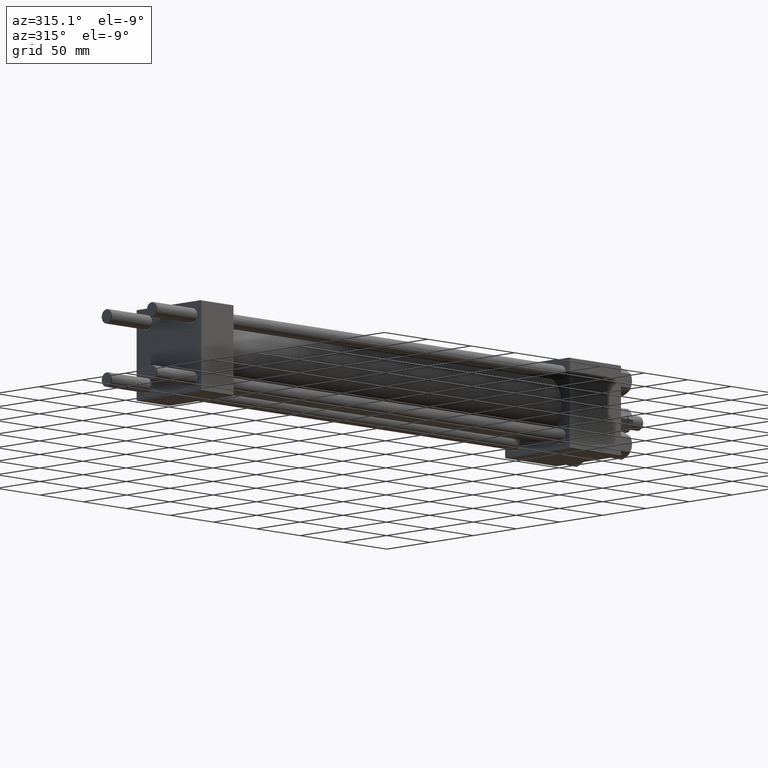
[diagram: clean part render]
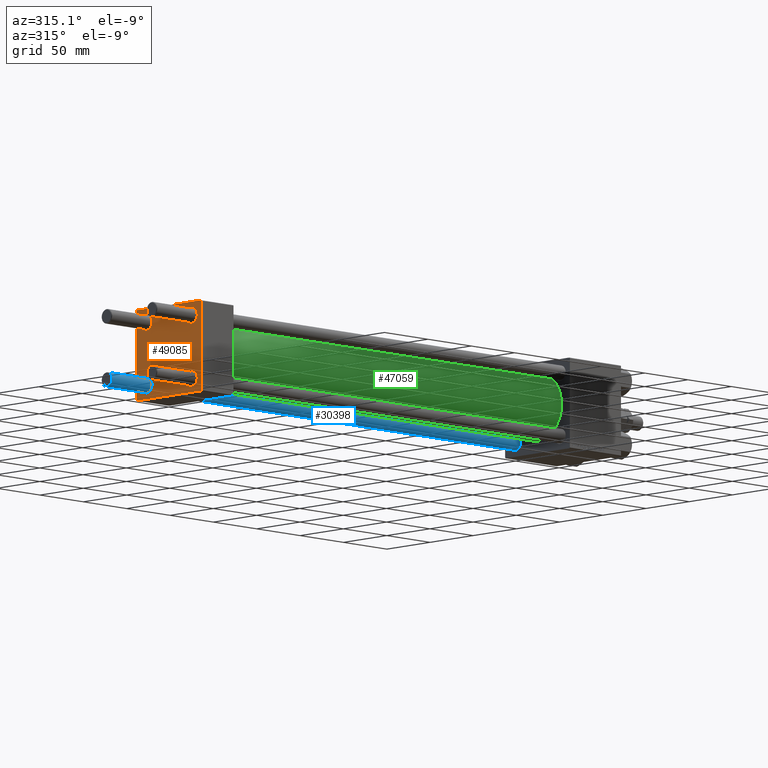
[diagram: same view with three faces highlighted in distinct colors, each labeled with its STEP entity id]
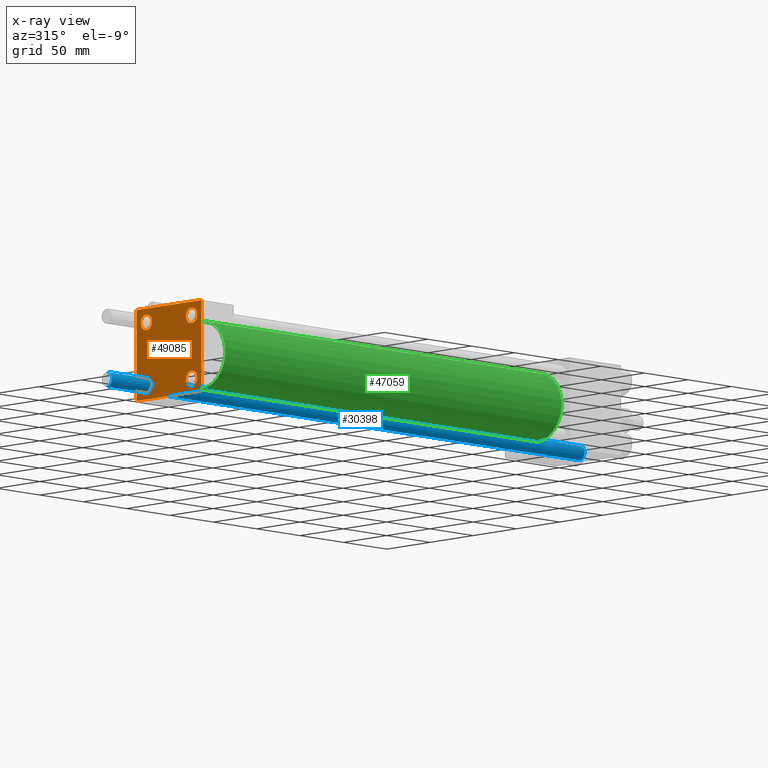
[diagram: x-ray of the same camera — body ghosted, the three highlighted faces saturated]
A machine part, auxiliary view with three faces highlighted in distinct colors.
The next image is the same camera in x-ray (body ghosted, the three faces saturated) — at least one of them is partly hidden behind the body in this view.
Their STEP definitions:

[orange] entity #49085 — the highlighted planar face has unit normal (-1, 0, 0).
#116 = EDGE_CURVE ( 'NONE', #28923, #42458, #24873, .T. ) ;
#856 = ORIENTED_EDGE ( 'NONE', *, *, #39921, .T. ) ;
#881 = VECTOR ( 'NONE', #4417, 1000.000000000000000 ) ;
#1112 = EDGE_CURVE ( 'NONE', #5081, #9514, #28043, .T. ) ;
#1335 = VERTEX_POINT ( 'NONE', #16374 ) ;
#2228 = CARTESIAN_POINT ( 'NONE',  ( 0.000000000000000000, 26.14999999999999858, 26.15000000000000213 ) ) ;
#2292 = ORIENTED_EDGE ( 'NONE', *, *, #17722, .F. ) ;
#2297 = EDGE_LOOP ( 'NONE', ( #21271, #45058, #856, #9551, #2292, #50006, #32623, #17622 ) ) ;
#2407 = CARTESIAN_POINT ( 'NONE',  ( 0.000000000000000000, -37.00000000000002132, -37.50000000000000711 ) ) ;
#2698 = VERTEX_POINT ( 'NONE', #33154 ) ;
#2800 = EDGE_CURVE ( 'NONE', #2698, #32061, #14207, .T. ) ;
#3125 = DIRECTION ( 'NONE',  ( 1.000000000000000000, -0.000000000000000000, 0.000000000000000000 ) ) ;
#3165 = EDGE_LOOP ( 'NONE', ( #31239, #39391 ) ) ;
#3483 = AXIS2_PLACEMENT_3D ( 'NONE', #30097, #3125, #38925 ) ;
#4417 = DIRECTION ( 'NONE',  ( 0.000000000000000000, 0.000000000000000000, -1.000000000000000000 ) ) ;
#5081 = VERTEX_POINT ( 'NONE', #26289 ) ;
#5207 = DIRECTION ( 'NONE',  ( 1.000000000000000000, -0.000000000000000000, 0.000000000000000000 ) ) ;
#5210 = DIRECTION ( 'NONE',  ( -0.000000000000000000, -0.7071067811865474617, -0.7071067811865474617 ) ) ;
#5376 = FACE_BOUND ( 'NONE', #16342, .T. ) ;
#5671 = EDGE_CURVE ( 'NONE', #1335, #51214, #9567, .T. ) ;
#5851 = CARTESIAN_POINT ( 'NONE',  ( 0.000000000000000000, -26.14999999999999147, 32.65000000000003411 ) ) ;
#5861 = DIRECTION ( 'NONE',  ( 1.000000000000000000, -0.000000000000000000, 0.000000000000000000 ) ) ;
#6624 = DIRECTION ( 'NONE',  ( 1.000000000000000000, -0.000000000000000000, 0.000000000000000000 ) ) ;
#7799 = EDGE_CURVE ( 'NONE', #9514, #5081, #24179, .T. ) ;
#9261 = PLANE ( 'NONE',  #36895 ) ;
#9281 = AXIS2_PLACEMENT_3D ( 'NONE', #9903, #17959, #37920 ) ;
#9514 = VERTEX_POINT ( 'NONE', #5851 ) ;
#9551 = ORIENTED_EDGE ( 'NONE', *, *, #116, .T. ) ;
#9567 = LINE ( 'NONE', #25402, #881 ) ;
#9587 = EDGE_CURVE ( 'NONE', #48383, #1335, #21678, .T. ) ;
#9745 = EDGE_CURVE ( 'NONE', #47883, #18665, #31668, .T. ) ;
#9766 = VECTOR ( 'NONE', #20982, 1000.000000000000000 ) ;
#9823 = DIRECTION ( 'NONE',  ( 0.000000000000000000, -1.000000000000000000, -9.251858538542971581E-17 ) ) ;
#9903 = CARTESIAN_POINT ( 'NONE',  ( 0.000000000000000000, 26.14999999999999858, -26.15000000000000213 ) ) ;
#9910 = DIRECTION ( 'NONE',  ( 0.000000000000000000, 0.000000000000000000, 1.000000000000000000 ) ) ;
#10047 = CARTESIAN_POINT ( 'NONE',  ( 0.000000000000000000, -37.00000000000000711, 37.49999999999999289 ) ) ;
#10551 = ORIENTED_EDGE ( 'NONE', *, *, #1112, .T. ) ;
#10692 = CARTESIAN_POINT ( 'NONE',  ( 0.000000000000000000, -26.14999999999999147, 26.15000000000000924 ) ) ;
#12324 = EDGE_CURVE ( 'NONE', #24722, #38410, #29971, .T. ) ;
#12497 = CIRCLE ( 'NONE', #14984, 6.500000000000015987 ) ;
#13223 = VECTOR ( 'NONE', #42477, 1000.000000000000114 ) ;
#13253 = DIRECTION ( 'NONE',  ( 0.000000000000000000, -1.000000000000000000, -9.251858538542972814E-17 ) ) ;
#13558 = CARTESIAN_POINT ( 'NONE',  ( 0.000000000000000000, -37.50000000000000000, -37.00000000000003553 ) ) ;
#13928 = CARTESIAN_POINT ( 'NONE',  ( 0.000000000000000000, 36.99999999999999289, 37.50000000000000000 ) ) ;
#14207 = LINE ( 'NONE', #49481, #13223 ) ;
#14787 = AXIS2_PLACEMENT_3D ( 'NONE', #36232, #27224, #35016 ) ;
#14984 = AXIS2_PLACEMENT_3D ( 'NONE', #23787, #43760, #42987 ) ;
#15063 = EDGE_CURVE ( 'NONE', #51214, #38805, #37116, .T. ) ;
#15704 = VECTOR ( 'NONE', #27968, 1000.000000000000000 ) ;
#16342 = EDGE_LOOP ( 'NONE', ( #34726, #22605 ) ) ;
#16374 = CARTESIAN_POINT ( 'NONE',  ( 0.000000000000000000, 37.49999999999999289, 37.00000000000000000 ) ) ;
#16810 = FACE_BOUND ( 'NONE', #43798, .T. ) ;
#17578 = VERTEX_POINT ( 'NONE', #42771 ) ;
#17622 = ORIENTED_EDGE ( 'NONE', *, *, #9587, .T. ) ;
#17655 = VECTOR ( 'NONE', #5210, 1000.000000000000114 ) ;
#17722 = EDGE_CURVE ( 'NONE', #2698, #42458, #24074, .T. ) ;
#17959 = DIRECTION ( 'NONE',  ( 1.000000000000000000, -0.000000000000000000, 0.000000000000000000 ) ) ;
#18191 = CIRCLE ( 'NONE', #26488, 6.500000000000023093 ) ;
#18665 = VERTEX_POINT ( 'NONE', #23613 ) ;
#19162 = EDGE_CURVE ( 'NONE', #17578, #27385, #32313, .T. ) ;
#19226 = EDGE_CURVE ( 'NONE', #27385, #17578, #18191, .T. ) ;
#20298 = VECTOR ( 'NONE', #13253, 1000.000000000000000 ) ;
#20982 = DIRECTION ( 'NONE',  ( 0.000000000000000000, -0.7071067811865524577, 0.7071067811865426878 ) ) ;
#21084 = CARTESIAN_POINT ( 'NONE',  ( 0.000000000000000000, 36.99999999999997868, -37.50000000000000000 ) ) ;
#21271 = ORIENTED_EDGE ( 'NONE', *, *, #5671, .T. ) ;
#21332 = EDGE_LOOP ( 'NONE', ( #36058, #10551 ) ) ;
#21451 = DIRECTION ( 'NONE',  ( -0.000000000000000000, 0.000000000000000000, 1.000000000000000000 ) ) ;
#21678 = LINE ( 'NONE', #29210, #32472 ) ;
#22605 = ORIENTED_EDGE ( 'NONE', *, *, #9745, .T. ) ;
#23228 = DIRECTION ( 'NONE',  ( 0.000000000000000000, 0.000000000000000000, 1.000000000000000000 ) ) ;
#23518 = ORIENTED_EDGE ( 'NONE', *, *, #19226, .T. ) ;
#23613 = CARTESIAN_POINT ( 'NONE',  ( 0.000000000000000000, 26.14999999999999858, -19.64999999999998792 ) ) ;
#23787 = CARTESIAN_POINT ( 'NONE',  ( 0.000000000000000000, 26.14999999999999858, -26.15000000000000213 ) ) ;
#24074 = LINE ( 'NONE', #47424, #15704 ) ;
#24179 = CIRCLE ( 'NONE', #33287, 6.500000000000023093 ) ;
#24722 = VERTEX_POINT ( 'NONE', #39095 ) ;
#24791 = EDGE_CURVE ( 'NONE', #18665, #47883, #12497, .T. ) ;
#24873 = LINE ( 'NONE', #40693, #9766 ) ;
#25090 = CARTESIAN_POINT ( 'NONE',  ( 0.000000000000000000, 0.000000000000000000, 0.000000000000000000 ) ) ;
#25402 = CARTESIAN_POINT ( 'NONE',  ( 0.000000000000000000, 37.49999999999999289, 37.50000000000000000 ) ) ;
#26289 = CARTESIAN_POINT ( 'NONE',  ( 0.000000000000000000, -26.14999999999999147, 19.64999999999999147 ) ) ;
#26345 = CARTESIAN_POINT ( 'NONE',  ( 0.000000000000000000, 26.14999999999999858, 26.15000000000000213 ) ) ;
#26449 = EDGE_CURVE ( 'NONE', #38410, #24722, #42342, .T. ) ;
#26488 = AXIS2_PLACEMENT_3D ( 'NONE', #26345, #6624, #23228 ) ;
#27224 = DIRECTION ( 'NONE',  ( 1.000000000000000000, -0.000000000000000000, 0.000000000000000000 ) ) ;
#27385 = VERTEX_POINT ( 'NONE', #27748 ) ;
#27748 = CARTESIAN_POINT ( 'NONE',  ( 0.000000000000000000, 26.14999999999999858, 19.64999999999998437 ) ) ;
#27968 = DIRECTION ( 'NONE',  ( 0.000000000000000000, 9.251858538542971581E-17, -1.000000000000000000 ) ) ;
#28043 = CIRCLE ( 'NONE', #14787, 6.500000000000023093 ) ;
#28738 = CARTESIAN_POINT ( 'NONE',  ( 0.000000000000000000, 26.14999999999999858, -32.65000000000001990 ) ) ;
#28831 = CARTESIAN_POINT ( 'NONE',  ( 0.000000000000000000, 37.49999999999999289, -36.99999999999998579 ) ) ;
#28923 = VERTEX_POINT ( 'NONE', #2407 ) ;
#29210 = CARTESIAN_POINT ( 'NONE',  ( 0.000000000000000000, 37.24999999999999289, 37.24999999999999289 ) ) ;
#29971 = CIRCLE ( 'NONE', #3483, 6.500000000000015987 ) ;
#30053 = LINE ( 'NONE', #45878, #36189 ) ;
#30097 = CARTESIAN_POINT ( 'NONE',  ( 0.000000000000000000, -26.14999999999999147, -26.15000000000000924 ) ) ;
#31239 = ORIENTED_EDGE ( 'NONE', *, *, #12324, .T. ) ;
#31668 = CIRCLE ( 'NONE', #9281, 6.500000000000015987 ) ;
#32061 = VERTEX_POINT ( 'NONE', #10047 ) ;
#32313 = CIRCLE ( 'NONE', #45553, 6.500000000000023093 ) ;
#32472 = VECTOR ( 'NONE', #42163, 1000.000000000000114 ) ;
#32623 = ORIENTED_EDGE ( 'NONE', *, *, #43207, .F. ) ;
#33154 = CARTESIAN_POINT ( 'NONE',  ( 0.000000000000000000, -37.50000000000000711, 36.99999999999999289 ) ) ;
#33287 = AXIS2_PLACEMENT_3D ( 'NONE', #10692, #46488, #9910 ) ;
#33880 = DIRECTION ( 'NONE',  ( 0.000000000000000000, 0.000000000000000000, 1.000000000000000000 ) ) ;
#34726 = ORIENTED_EDGE ( 'NONE', *, *, #24791, .T. ) ;
#34939 = CARTESIAN_POINT ( 'NONE',  ( 0.000000000000000000, -26.14999999999999147, -32.65000000000002700 ) ) ;
#35016 = DIRECTION ( 'NONE',  ( 0.000000000000000000, 0.000000000000000000, 1.000000000000000000 ) ) ;
#35857 = DIRECTION ( 'NONE',  ( 0.000000000000000000, 0.000000000000000000, 1.000000000000000000 ) ) ;
#36058 = ORIENTED_EDGE ( 'NONE', *, *, #7799, .T. ) ;
#36189 = VECTOR ( 'NONE', #9823, 1000.000000000000000 ) ;
#36232 = CARTESIAN_POINT ( 'NONE',  ( 0.000000000000000000, -26.14999999999999147, 26.15000000000000924 ) ) ;
#36778 = FACE_BOUND ( 'NONE', #21332, .T. ) ;
#36895 = AXIS2_PLACEMENT_3D ( 'NONE', #25090, #37027, #21451 ) ;
#37027 = DIRECTION ( 'NONE',  ( -1.000000000000000000, 0.000000000000000000, -0.000000000000000000 ) ) ;
#37116 = LINE ( 'NONE', #40756, #17655 ) ;
#37920 = DIRECTION ( 'NONE',  ( 0.000000000000000000, 0.000000000000000000, 1.000000000000000000 ) ) ;
#38410 = VERTEX_POINT ( 'NONE', #34939 ) ;
#38805 = VERTEX_POINT ( 'NONE', #21084 ) ;
#38925 = DIRECTION ( 'NONE',  ( 0.000000000000000000, 0.000000000000000000, 1.000000000000000000 ) ) ;
#39095 = CARTESIAN_POINT ( 'NONE',  ( 0.000000000000000000, -26.14999999999999147, -19.64999999999999503 ) ) ;
#39391 = ORIENTED_EDGE ( 'NONE', *, *, #26449, .T. ) ;
#39921 = EDGE_CURVE ( 'NONE', #38805, #28923, #40997, .T. ) ;
#40500 = CARTESIAN_POINT ( 'NONE',  ( 0.000000000000000000, -26.14999999999999147, -26.15000000000000924 ) ) ;
#40693 = CARTESIAN_POINT ( 'NONE',  ( 0.000000000000000000, -37.24999999999975842, -37.25000000000027001 ) ) ;
#40756 = CARTESIAN_POINT ( 'NONE',  ( 0.000000000000000000, 37.24999999999998579, -37.24999999999998579 ) ) ;
#40997 = LINE ( 'NONE', #48527, #20298 ) ;
#41174 = FACE_BOUND ( 'NONE', #3165, .T. ) ;
#41513 = AXIS2_PLACEMENT_3D ( 'NONE', #40500, #5207, #35857 ) ;
#42163 = DIRECTION ( 'NONE',  ( 0.000000000000000000, 0.7071067811865474617, -0.7071067811865474617 ) ) ;
#42342 = CIRCLE ( 'NONE', #41513, 6.500000000000015987 ) ;
#42458 = VERTEX_POINT ( 'NONE', #13558 ) ;
#42477 = DIRECTION ( 'NONE',  ( -0.000000000000000000, 0.7071067811865474617, 0.7071067811865474617 ) ) ;
#42771 = CARTESIAN_POINT ( 'NONE',  ( 0.000000000000000000, 26.14999999999999858, 32.65000000000002700 ) ) ;
#42987 = DIRECTION ( 'NONE',  ( 0.000000000000000000, 0.000000000000000000, 1.000000000000000000 ) ) ;
#43207 = EDGE_CURVE ( 'NONE', #48383, #32061, #30053, .T. ) ;
#43760 = DIRECTION ( 'NONE',  ( 1.000000000000000000, -0.000000000000000000, 0.000000000000000000 ) ) ;
#43798 = EDGE_LOOP ( 'NONE', ( #45829, #23518 ) ) ;
#45058 = ORIENTED_EDGE ( 'NONE', *, *, #15063, .T. ) ;
#45553 = AXIS2_PLACEMENT_3D ( 'NONE', #2228, #5861, #33880 ) ;
#45829 = ORIENTED_EDGE ( 'NONE', *, *, #19162, .T. ) ;
#45878 = CARTESIAN_POINT ( 'NONE',  ( 0.000000000000000000, 37.49999999999999289, 37.50000000000000000 ) ) ;
#46488 = DIRECTION ( 'NONE',  ( 1.000000000000000000, -0.000000000000000000, 0.000000000000000000 ) ) ;
#47424 = CARTESIAN_POINT ( 'NONE',  ( 0.000000000000000000, -37.50000000000000711, 37.49999999999999289 ) ) ;
#47883 = VERTEX_POINT ( 'NONE', #28738 ) ;
#48383 = VERTEX_POINT ( 'NONE', #13928 ) ;
#48527 = CARTESIAN_POINT ( 'NONE',  ( 0.000000000000000000, 37.49999999999999289, -37.50000000000000000 ) ) ;
#48704 = FACE_OUTER_BOUND ( 'NONE', #2297, .T. ) ;
#49085 = ADVANCED_FACE ( 'NONE', ( #36778, #41174, #5376, #16810, #48704 ), #9261, .T. ) ;
#49481 = CARTESIAN_POINT ( 'NONE',  ( -0.000000000000000000, -37.25000000000000000, 37.25000000000000000 ) ) ;
#50006 = ORIENTED_EDGE ( 'NONE', *, *, #2800, .T. ) ;
#51214 = VERTEX_POINT ( 'NONE', #28831 ) ;

[blue] entity #30398 — the highlighted cylindrical surface (edge-blend (fillet) strip) has radius 6 mm, axis along (1, 0, -0).
#3772 = EDGE_CURVE ( 'NONE', #5468, #42660, #13963, .T. ) ;
#4394 = FACE_OUTER_BOUND ( 'NONE', #6223, .T. ) ;
#4436 = VECTOR ( 'NONE', #41208, 1000.000000000000000 ) ;
#5468 = VERTEX_POINT ( 'NONE', #15351 ) ;
#5492 = EDGE_CURVE ( 'NONE', #29930, #42660, #48099, .T. ) ;
#6223 = EDGE_LOOP ( 'NONE', ( #8037, #49160, #21967, #36394 ) ) ;
#8037 = ORIENTED_EDGE ( 'NONE', *, *, #3772, .F. ) ;
#9607 = CIRCLE ( 'NONE', #49392, 6.000000000000000888 ) ;
#11193 = DIRECTION ( 'NONE',  ( -0.000000000000000000, -0.000000000000000000, 1.000000000000000000 ) ) ;
#12689 = AXIS2_PLACEMENT_3D ( 'NONE', #45287, #36051, #23601 ) ;
#13963 = LINE ( 'NONE', #34703, #50512 ) ;
#15351 = CARTESIAN_POINT ( 'NONE',  ( 6.000000000000000888, 7.347880794884120722E-16, 545.5000000000001137 ) ) ;
#15437 = EDGE_CURVE ( 'NONE', #17515, #29930, #25384, .T. ) ;
#15865 = DIRECTION ( 'NONE',  ( 0.000000000000000000, 0.000000000000000000, -1.000000000000000000 ) ) ;
#16844 = CARTESIAN_POINT ( 'NONE',  ( -6.000000000000000888, 0.000000000000000000, 546.0000000000000000 ) ) ;
#16857 = CARTESIAN_POINT ( 'NONE',  ( -6.000000000000000888, 0.000000000000000000, 545.5000000000001137 ) ) ;
#17515 = VERTEX_POINT ( 'NONE', #16857 ) ;
#17634 = CARTESIAN_POINT ( 'NONE',  ( 6.000000000000000888, 7.347880794884120722E-16, 0.5000000000000559552 ) ) ;
#19484 = CARTESIAN_POINT ( 'NONE',  ( 0.000000000000000000, 0.000000000000000000, 0.5000000000000559552 ) ) ;
#21967 = ORIENTED_EDGE ( 'NONE', *, *, #15437, .T. ) ;
#23601 = DIRECTION ( 'NONE',  ( -1.000000000000000000, 0.000000000000000000, 0.000000000000000000 ) ) ;
#25384 = LINE ( 'NONE', #16844, #4436 ) ;
#29930 = VERTEX_POINT ( 'NONE', #50911 ) ;
#30398 = ADVANCED_FACE ( 'NONE', ( #4394 ), #31648, .T. ) ;
#31648 = CYLINDRICAL_SURFACE ( 'NONE', #12689, 6.000000000000000888 ) ;
#34703 = CARTESIAN_POINT ( 'NONE',  ( 6.000000000000000888, 7.347880794884120722E-16, 546.0000000000000000 ) ) ;
#36051 = DIRECTION ( 'NONE',  ( -0.000000000000000000, -0.000000000000000000, -1.000000000000000000 ) ) ;
#36394 = ORIENTED_EDGE ( 'NONE', *, *, #5492, .T. ) ;
#39706 = CARTESIAN_POINT ( 'NONE',  ( 0.000000000000000000, 0.000000000000000000, 545.5000000000001137 ) ) ;
#40656 = AXIS2_PLACEMENT_3D ( 'NONE', #19484, #11193, #43345 ) ;
#41208 = DIRECTION ( 'NONE',  ( -0.000000000000000000, -0.000000000000000000, -1.000000000000000000 ) ) ;
#42660 = VERTEX_POINT ( 'NONE', #17634 ) ;
#42997 = EDGE_CURVE ( 'NONE', #5468, #17515, #9607, .T. ) ;
#43345 = DIRECTION ( 'NONE',  ( 1.000000000000000000, 0.000000000000000000, 0.000000000000000000 ) ) ;
#43611 = DIRECTION ( 'NONE',  ( 1.000000000000000000, 0.000000000000000000, 0.000000000000000000 ) ) ;
#45287 = CARTESIAN_POINT ( 'NONE',  ( 0.000000000000000000, 0.000000000000000000, 546.0000000000000000 ) ) ;
#48099 = CIRCLE ( 'NONE', #40656, 6.000000000000000888 ) ;
#49160 = ORIENTED_EDGE ( 'NONE', *, *, #42997, .T. ) ;
#49392 = AXIS2_PLACEMENT_3D ( 'NONE', #39706, #15865, #43611 ) ;
#50512 = VECTOR ( 'NONE', #50517, 1000.000000000000000 ) ;
#50517 = DIRECTION ( 'NONE',  ( -0.000000000000000000, -0.000000000000000000, -1.000000000000000000 ) ) ;
#50911 = CARTESIAN_POINT ( 'NONE',  ( -6.000000000000000888, 0.000000000000000000, 0.5000000000000559552 ) ) ;

[green] entity #47059 — the highlighted cylindrical surface (edge-blend (fillet) strip) has radius 28 mm, axis along (-1, -0, -0).
#725 = ORIENTED_EDGE ( 'NONE', *, *, #17680, .F. ) ;
#3730 = AXIS2_PLACEMENT_3D ( 'NONE', #21199, #5114, #29232 ) ;
#4265 = CARTESIAN_POINT ( 'NONE',  ( 425.0000000000000000, 3.429011037612588487E-15, -28.00000000000000000 ) ) ;
#5114 = DIRECTION ( 'NONE',  ( -1.000000000000000000, -0.000000000000000000, -0.000000000000000000 ) ) ;
#7756 = VERTEX_POINT ( 'NONE', #9661 ) ;
#9661 = CARTESIAN_POINT ( 'NONE',  ( 36.99999999999997868, 3.429011037612588487E-15, -28.00000000000000000 ) ) ;
#10021 = FACE_OUTER_BOUND ( 'NONE', #16435, .T. ) ;
#10645 = VERTEX_POINT ( 'NONE', #29004 ) ;
#10908 = CARTESIAN_POINT ( 'NONE',  ( 425.0000000000000000, 0.000000000000000000, 28.00000000000000000 ) ) ;
#11304 = LINE ( 'NONE', #34903, #30819 ) ;
#12283 = ORIENTED_EDGE ( 'NONE', *, *, #15200, .T. ) ;
#13986 = ORIENTED_EDGE ( 'NONE', *, *, #51158, .T. ) ;
#14187 = CYLINDRICAL_SURFACE ( 'NONE', #3730, 28.00000000000000000 ) ;
#15200 = EDGE_CURVE ( 'NONE', #46532, #10645, #26984, .T. ) ;
#16435 = EDGE_LOOP ( 'NONE', ( #41047, #725, #12283, #13986 ) ) ;
#17680 = EDGE_CURVE ( 'NONE', #46532, #29863, #46619, .T. ) ;
#18431 = DIRECTION ( 'NONE',  ( -1.000000000000000000, -0.000000000000000000, -0.000000000000000000 ) ) ;
#18795 = AXIS2_PLACEMENT_3D ( 'NONE', #41275, #40512, #20803 ) ;
#20803 = DIRECTION ( 'NONE',  ( 0.000000000000000000, 0.000000000000000000, 1.000000000000000000 ) ) ;
#21199 = CARTESIAN_POINT ( 'NONE',  ( 425.0000000000000000, 0.000000000000000000, 0.000000000000000000 ) ) ;
#22613 = VECTOR ( 'NONE', #18431, 1000.000000000000000 ) ;
#22959 = DIRECTION ( 'NONE',  ( -1.000000000000000000, -0.000000000000000000, -0.000000000000000000 ) ) ;
#24255 = AXIS2_PLACEMENT_3D ( 'NONE', #35757, #44049, #28220 ) ;
#26984 = LINE ( 'NONE', #10908, #22613 ) ;
#27955 = EDGE_CURVE ( 'NONE', #29863, #7756, #11304, .T. ) ;
#28220 = DIRECTION ( 'NONE',  ( 0.000000000000000000, 0.000000000000000000, -1.000000000000000000 ) ) ;
#29004 = CARTESIAN_POINT ( 'NONE',  ( 36.99999999999997868, 0.000000000000000000, 28.00000000000000000 ) ) ;
#29232 = DIRECTION ( 'NONE',  ( 0.000000000000000000, 0.000000000000000000, 1.000000000000000000 ) ) ;
#29863 = VERTEX_POINT ( 'NONE', #4265 ) ;
#30819 = VECTOR ( 'NONE', #22959, 1000.000000000000000 ) ;
#34903 = CARTESIAN_POINT ( 'NONE',  ( 425.0000000000000000, 3.429011037612588487E-15, -28.00000000000000000 ) ) ;
#35562 = CARTESIAN_POINT ( 'NONE',  ( 425.0000000000000000, 0.000000000000000000, 28.00000000000000000 ) ) ;
#35757 = CARTESIAN_POINT ( 'NONE',  ( 425.0000000000000000, 0.000000000000000000, 0.000000000000000000 ) ) ;
#36201 = CIRCLE ( 'NONE', #18795, 28.00000000000000000 ) ;
#40512 = DIRECTION ( 'NONE',  ( 1.000000000000000000, -0.000000000000000000, 0.000000000000000000 ) ) ;
#41047 = ORIENTED_EDGE ( 'NONE', *, *, #27955, .F. ) ;
#41275 = CARTESIAN_POINT ( 'NONE',  ( 36.99999999999997868, 0.000000000000000000, 0.000000000000000000 ) ) ;
#44049 = DIRECTION ( 'NONE',  ( 1.000000000000000000, 0.000000000000000000, 0.000000000000000000 ) ) ;
#46532 = VERTEX_POINT ( 'NONE', #35562 ) ;
#46619 = CIRCLE ( 'NONE', #24255, 28.00000000000000000 ) ;
#47059 = ADVANCED_FACE ( 'NONE', ( #10021 ), #14187, .T. ) ;
#51158 = EDGE_CURVE ( 'NONE', #10645, #7756, #36201, .T. ) ;